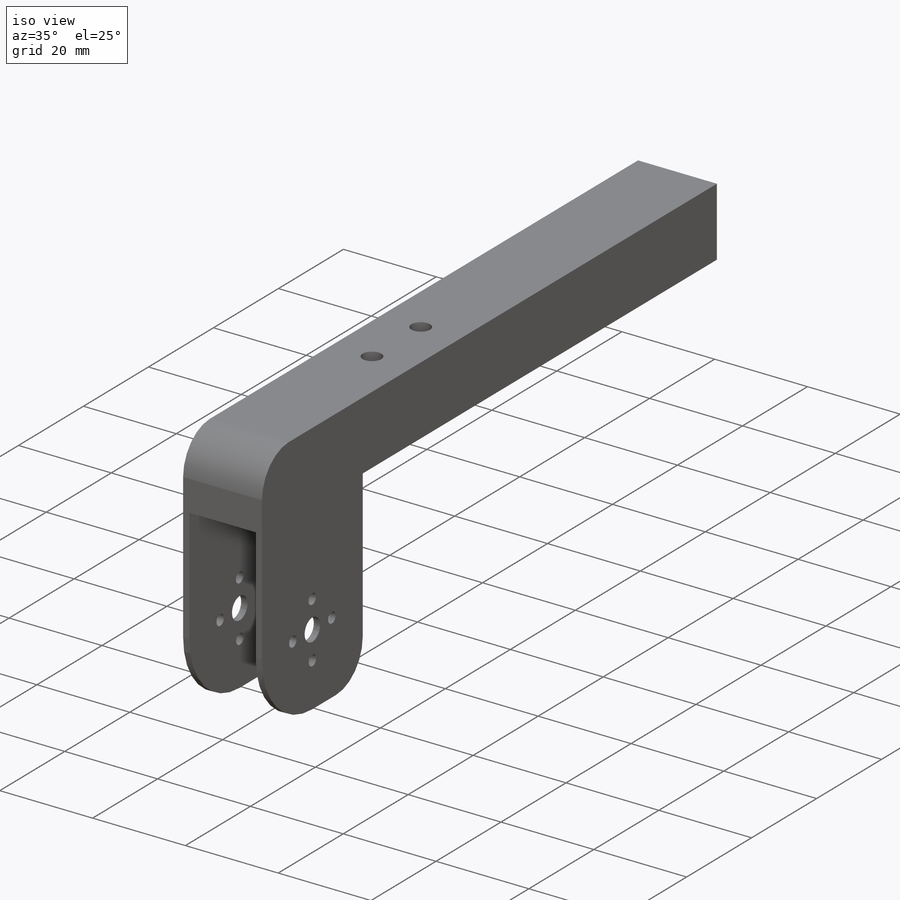
[diagram: iso view]
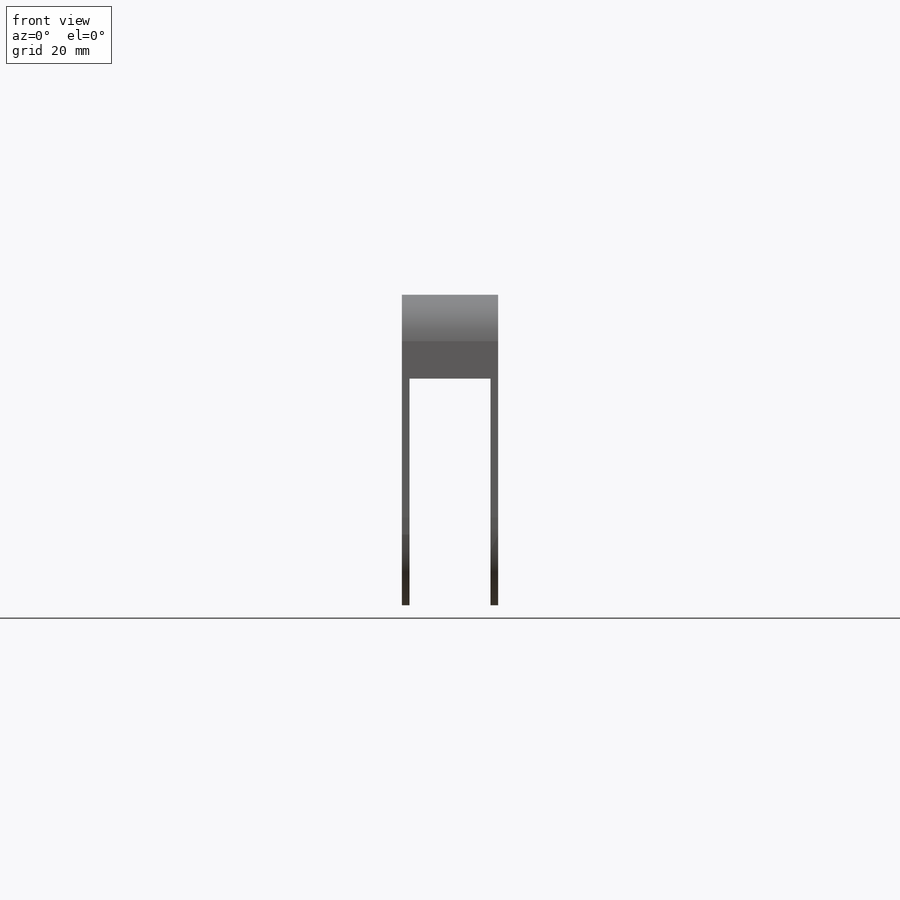
[diagram: front view]
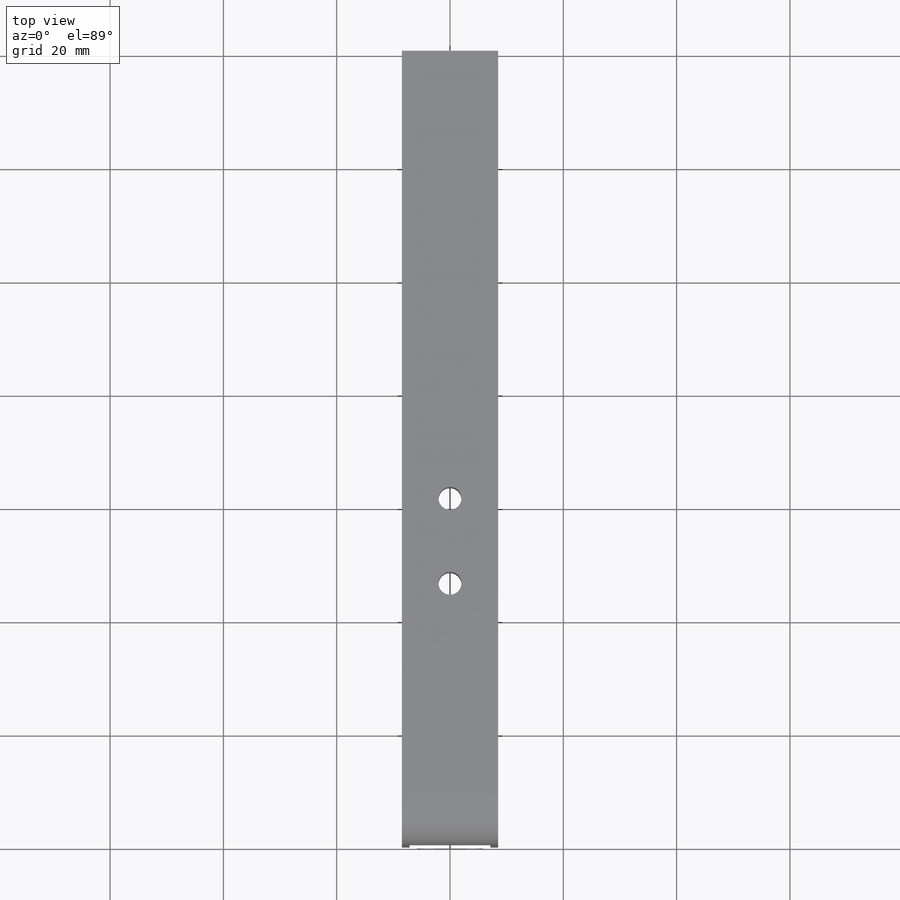
[diagram: top view]
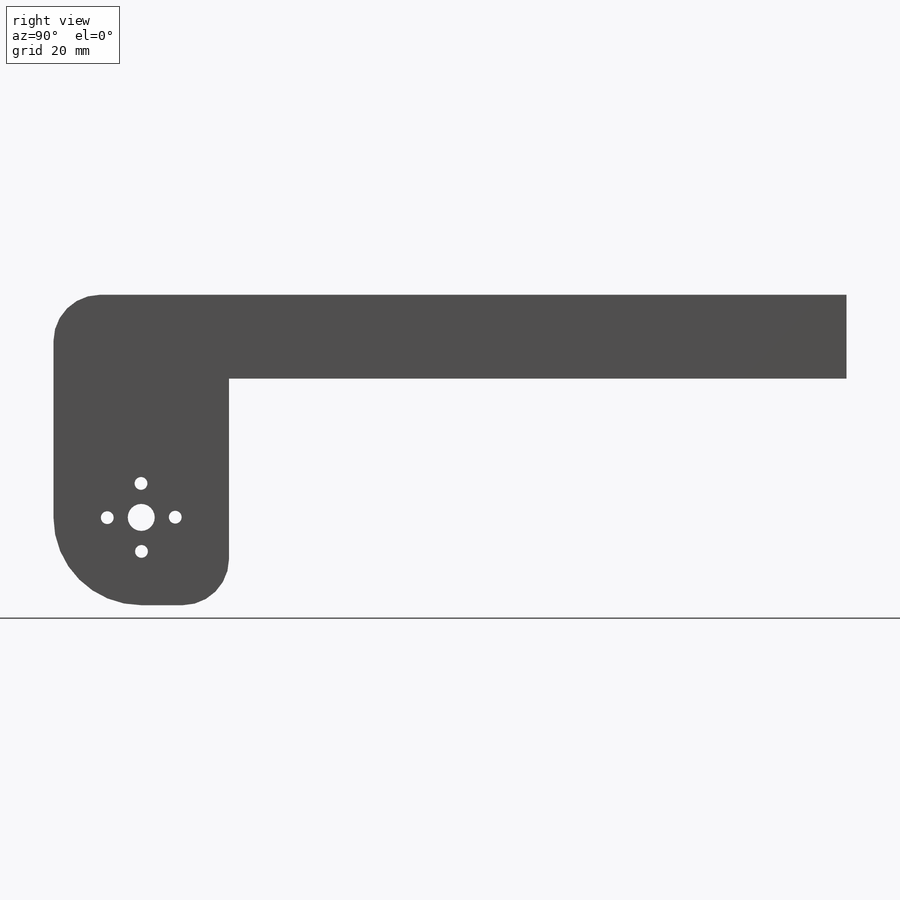
[diagram: right view]
SOLIDWORKS PART (.sldprt)
format: sldprt  version: not decoded by parser v0  size: 350,720 bytes
history: native  units: mm
features: sketch x10, thread x6, plane x3, extrude x3, cut_extrude x3, fillet x3, hole x2, material x1 (+8 scaffold rows collapsed)
feature tree (39):
  scaffold x8  (default folders/planes/origin — collapsed)
  material  "Material <not specified>"
  plane  "前基準面"
  plane  "上基準面"
  plane  "右基準面"
  sketch  "草圖1"  dims[D1=25.0mm D2=8.8mm]
  extrude  "填料-伸長1"  Depth=140mm
  sketch  "草圖3"  dims[D1=25.4mm]
  extrude  "填料-伸長2"  Depth=37.2mm
  sketch  "草圖4"  dims[D1=4.7625mm D2=12.7mm]
  cut_extrude  "除料-伸長2"  [1 undecoded]
  sketch  "草圖5"  dims[D1=18.745mm]
  cut_extrude  "除料-伸長4"  [1 undecoded]
  fillet  "圓角2"  Radius=8.2mm
  fillet  "圓角3"  Radius=12.7mm
  fillet  "圓角4"  Radius=12.7mm
  hole  "#10-32 螺紋孔1"  [1 undecoded]
  sketch  "草圖9"  dims[D1=15.0mm D2=15.0mm]
  sketch  "草圖8"  dims[hole-wizard template sketch: 60 standard entries collapsed; hole parameters kept: c18.貫穿螺孔鑽深度=46.0mm]
  thread  "鑽孔螺紋5"  Diameter=4.826mm  [1 undecoded]
  thread  "鑽孔螺紋6"  Diameter=4.826mm  [1 undecoded]
  sketch  "草圖10"  dims[D1=15.88mm]
  extrude  "填料-伸長3"  Depth=4.445mm
  sketch  "草圖11"  dims[D1=15.0mm]
  cut_extrude  "除料-伸長5"  [1 undecoded]
  hole  "#4-40 螺紋孔1"  [1 undecoded]
  sketch  "草圖13"  dims[D1=6.0mm D2=6.0mm D3=6.0mm D4=6.0mm]
  sketch  "草圖12"  dims[hole-wizard template sketch: 59 standard entries collapsed; hole parameters kept: c18.貫穿螺孔鑽直徑=2.2606mm c18.貫穿螺孔鑽深度=~25.00005mm]
  thread  "鑽孔螺紋7"  Diameter=2.8448mm  [1 undecoded]
  thread  "鑽孔螺紋8"  Diameter=2.8448mm  [1 undecoded]
  thread  "鑽孔螺紋9"  Diameter=2.8448mm  [1 undecoded]
  thread  "鑽孔螺紋10"  Diameter=2.8448mm  [1 undecoded]
decode coverage: 22 of 27 modeling features carry decoded parameters
note: ~ marks probable driven/reference dimensions
note: 11 parameter values undecoded
summary: no parameter record found for 5 features
note: suppression state not decoded; provenance and decode notes live in map.json
